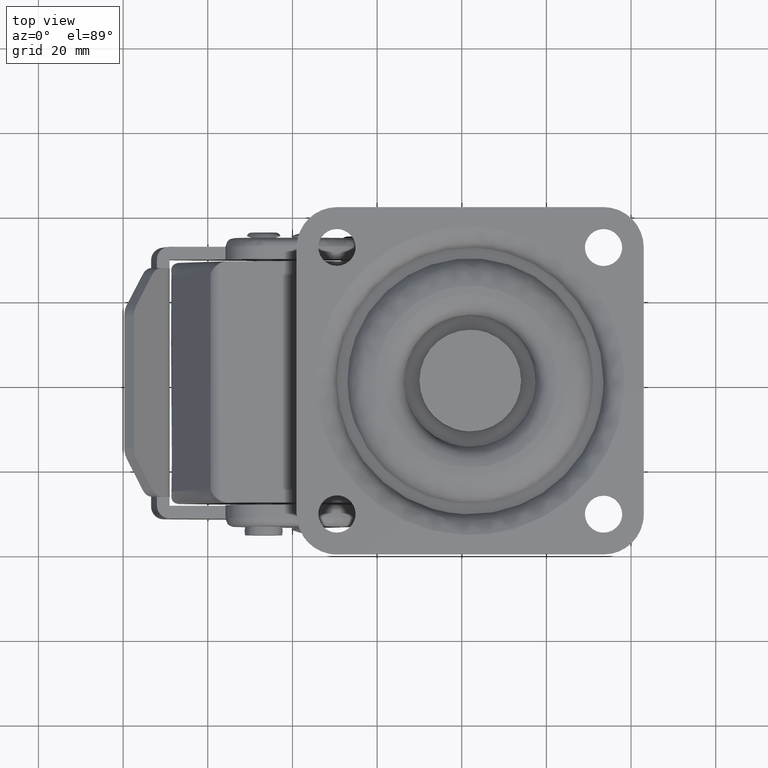
[diagram: clean part render]
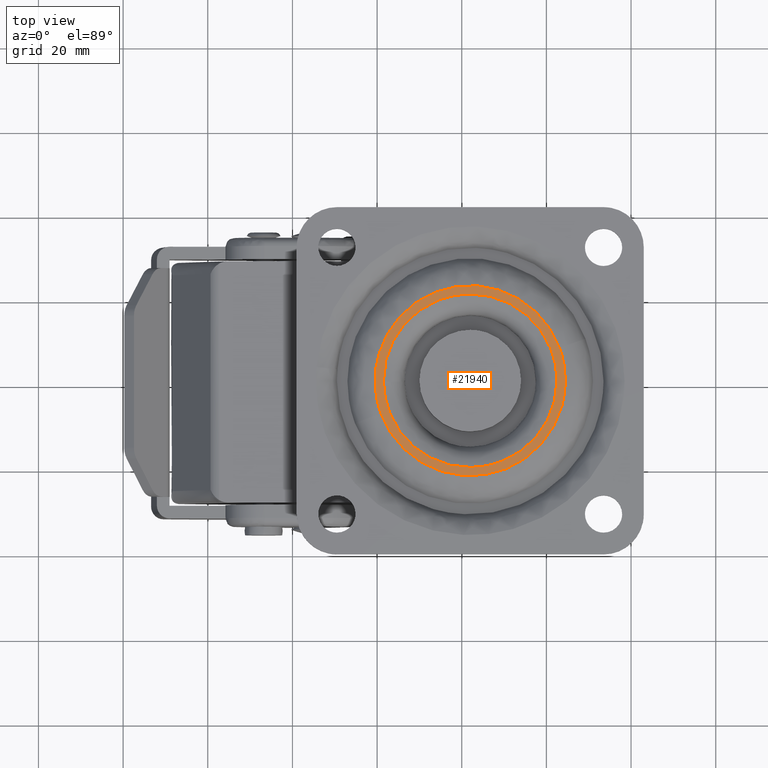
[diagram: same view with one face highlighted and labeled with its STEP entity id]
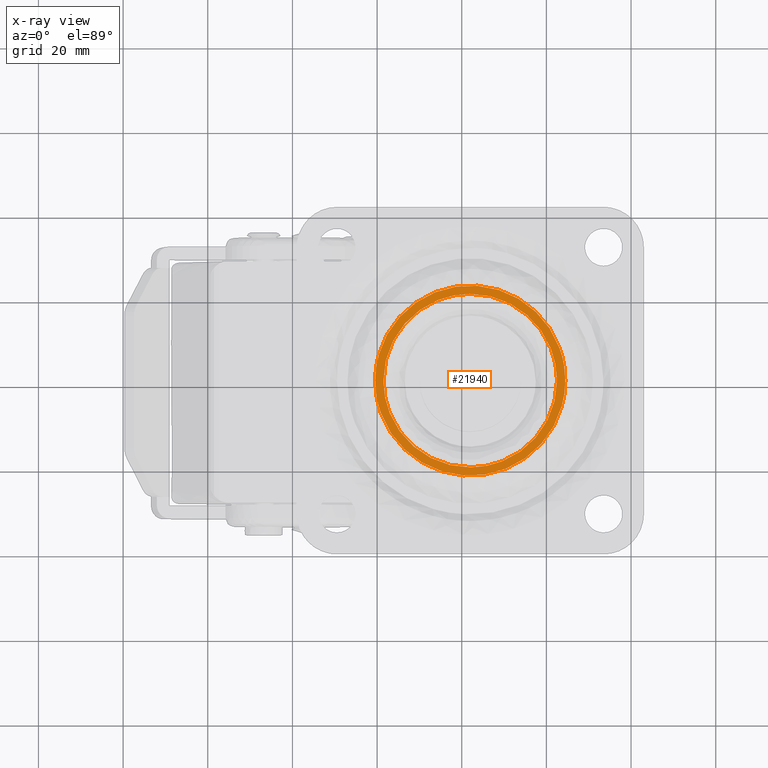
[diagram: x-ray of the same camera — body ghosted, the highlighted face saturated]
A machine part, top view. The second image highlights one B-rep face of the part: STEP entity #21940.
The next image is the same camera in x-ray: the body ghosted, the highlighted face saturated — about 0% of this face is hidden behind the body in this view.
In plain terms, the highlighted face is a freeform B-spline surface patch.
Its self-contained STEP definition (entity closure, byte-faithful):
#21771=CARTESIAN_POINT('',(-2.705570490929102,24.704286370710481,57.500000000000000));
#21772=CARTESIAN_POINT('',(46.705571695866489,24.704286370710481,57.500000000000000));
#21773=CARTESIAN_POINT('',(-2.705570490929102,-24.704375476838461,57.500000000000000));
#21774=CARTESIAN_POINT('',(46.705571695866489,-24.704375476838461,57.500000000000000));
#21775=B_SPLINE_SURFACE_WITH_KNOTS('',1,1,((#21771,#21773),(#21772,#21774)),.UNSPECIFIED.,.F.,.F.,.U.,(2,2),(2,2),(0.0,49.411142186795587),(0.0,49.408661847548942),.UNSPECIFIED.);
#21776=CARTESIAN_POINT('',(-0.461651584688748,2.842171E-014,57.500000000000000));
#21777=VERTEX_POINT('',#21776);
#21778=CARTESIAN_POINT('',(0.914487154822450,-7.741249263426779,57.500000000000000));
#21779=VERTEX_POINT('',#21778);
#21780=CARTESIAN_POINT('',(-0.461651584688748,2.842171E-014,57.500000000000000));
#21781=CARTESIAN_POINT('',(-0.461743271176180,-1.234900042100232,57.500000000000007));
#21782=CARTESIAN_POINT('',(-0.243833214106595,-3.869307365513851,57.500000000000007));
#21783=CARTESIAN_POINT('',(0.431996101282534,-6.427491636688772,57.499999999999943));
#21784=CARTESIAN_POINT('',(0.914487154822450,-7.741249263426779,57.500000000000000));
#21785=B_SPLINE_CURVE_WITH_KNOTS('',3,(#21780,#21781,#21782,#21783,#21784),.UNSPECIFIED.,.F.,.U.,(4,1,4),(4.131778E-009,3.704688696898565,7.903330230475531),.UNSPECIFIED.);
#21786=EDGE_CURVE('',#21777,#21779,#21785,.T.);
#21787=ORIENTED_EDGE('',*,*,#21786,.T.);
#21788=CARTESIAN_POINT('',(44.461651584689250,2.842171E-014,57.500000000000000));
#21789=VERTEX_POINT('',#21788);
#21790=CARTESIAN_POINT('',(0.914487154822450,-7.741249263426779,57.500000000000000));
#21791=CARTESIAN_POINT('',(1.308124771095212,-8.813555722081786,57.500000000000007));
#21792=CARTESIAN_POINT('',(2.395254357793445,-11.195751705284019,57.500000000000007));
#21793=CARTESIAN_POINT('',(4.648499287688146,-14.471921507706700,57.500000000000043));
#21794=CARTESIAN_POINT('',(7.297649923616174,-17.094096634919730,57.500000000000263));
#21795=CARTESIAN_POINT('',(9.740601368119439,-18.876929427810779,57.499999999999453));
#21796=CARTESIAN_POINT('',(12.046500990661221,-20.193498536153928,57.500000000003311));
#21797=CARTESIAN_POINT('',(14.454793902409630,-21.216351848537869,57.499999999992639));
#21798=CARTESIAN_POINT('',(17.440229385953050,-22.071768951137010,57.500000000006338));
#21799=CARTESIAN_POINT('',(20.400778570590901,-22.481039748404790,57.500000000004754));
#21800=CARTESIAN_POINT('',(23.874073108426721,-22.466116850960979,57.499999999997428));
#21801=CARTESIAN_POINT('',(27.032394918218671,-21.984261732318579,57.499999999999289));
#21802=CARTESIAN_POINT('',(30.384234701457899,-20.922689822981361,57.500000000007319));
#21803=CARTESIAN_POINT('',(33.035958953230697,-19.638211825970622,57.499999999995957));
#21804=CARTESIAN_POINT('',(35.902822801398237,-17.752423026238372,57.500000000003887));
#21805=CARTESIAN_POINT('',(38.312258488848123,-15.588771844805599,57.499999999999467));
#21806=CARTESIAN_POINT('',(40.766855784303743,-12.526200174051620,57.500000000003247));
#21807=CARTESIAN_POINT('',(42.454372899910616,-9.524733810196992,57.499999999997947));
#21808=CARTESIAN_POINT('',(43.529830285570817,-6.566129223344161,57.500000000000369));
#21809=CARTESIAN_POINT('',(44.258646640188232,-3.549128333975628,57.499999999999957));
#21810=CARTESIAN_POINT('',(44.461839544124217,-1.427856455022432,57.500000000000092));
#21811=CARTESIAN_POINT('',(44.461651584689250,2.842171E-014,57.500000000000000));
#21812=B_SPLINE_CURVE_WITH_KNOTS('',3,(#21790,#21791,#21792,#21793,#21794,#21795,#21796,#21797,#21798,#21799,#21800,#21801,#21802,#21803,#21804,#21805,#21806,#21807,#21808,#21809,#21810,#21811),.UNSPECIFIED.,.F.,.U.,(4,1,1,1,1,1,1,1,1,1,1,1,1,1,1,1,1,1,1,4),(0.000000212232280,3.426832564042286,7.832749004615359,11.871510545222490,14.564048602235911,16.889402476559741,19.826713223983610,22.396830842320579,26.190841942433320,28.760996227578900,32.799684465871017,35.736919785859669,39.286190478037632,41.611544138041182,46.017492053832569,48.954793099247262,53.360751608862529,56.298056478402927,58.378597374202698,62.662116845330260),.UNSPECIFIED.);
#21813=EDGE_CURVE('',#21779,#21789,#21812,.T.);
#21814=ORIENTED_EDGE('',*,*,#21813,.T.);
#21815=CARTESIAN_POINT('',(43.085512845178037,7.741249263426834,57.500000000000000));
#21816=VERTEX_POINT('',#21815);
#21817=CARTESIAN_POINT('',(44.461651584689250,2.842171E-014,57.500000000000000));
#21818=CARTESIAN_POINT('',(44.462080835901261,1.728898784396192,57.500000000000192));
#21819=CARTESIAN_POINT('',(44.155873125132672,4.363134189274289,57.499999999999808));
#21820=CARTESIAN_POINT('',(43.397628278094857,6.891147300833556,57.500000000000348));
#21821=CARTESIAN_POINT('',(43.085512845178037,7.741249263426834,57.500000000000000));
#21822=B_SPLINE_CURVE_WITH_KNOTS('',3,(#21817,#21818,#21819,#21820,#21821),.UNSPECIFIED.,.F.,.U.,(4,1,4),(4.130349E-009,5.186556349087166,7.903330230475540),.UNSPECIFIED.);
#21823=EDGE_CURVE('',#21789,#21816,#21822,.T.);
#21824=ORIENTED_EDGE('',*,*,#21823,.T.);
#21825=CARTESIAN_POINT('',(43.085512845178037,7.741249263426834,57.500000000000000));
#21826=CARTESIAN_POINT('',(42.453218158153263,9.464764045130007,57.500000000000057));
#21827=CARTESIAN_POINT('',(40.987907328209459,12.316275388005050,57.499999999999808));
#21828=CARTESIAN_POINT('',(38.234283691844780,15.673238270519439,57.500000000000327));
#21829=CARTESIAN_POINT('',(35.213665638117952,18.310141097082539,57.500000000000000));
#21830=CARTESIAN_POINT('',(31.979265663698509,20.251444853216739,57.499999999999673));
#21831=CARTESIAN_POINT('',(28.198042088375740,21.701598943197510,57.500000000000853));
#21832=CARTESIAN_POINT('',(24.420529672712700,22.456767759939879,57.499999999997662));
#21833=CARTESIAN_POINT('',(20.858228251903011,22.509321785202310,57.500000000004448));
#21834=CARTESIAN_POINT('',(17.940251874286279,22.136940936745901,57.499999999993832));
#21835=CARTESIAN_POINT('',(15.040309788506830,21.440112357949008,57.500000000004448));
#21836=CARTESIAN_POINT('',(12.149660872780389,20.284707270971229,57.499999999998273));
#21837=CARTESIAN_POINT('',(9.192092315858144,18.540488318592381,57.500000000000163));
#21838=CARTESIAN_POINT('',(6.469866280470345,16.376176303594850,57.500000000000057));
#21839=CARTESIAN_POINT('',(4.174505120163238,13.811869990629569,57.500000000000007));
#21840=CARTESIAN_POINT('',(2.277866014760851,10.901423257894519,57.500000000000021));
#21841=CARTESIAN_POINT('',(1.043934702431795,8.270925516454135,57.499999999999993));
#21842=CARTESIAN_POINT('',(-0.122156976527001,4.568870015120514,57.500000000000028));
#21843=CARTESIAN_POINT('',(-0.462221581686179,1.876655715639918,57.500000000000007));
#21844=CARTESIAN_POINT('',(-0.461651584688748,2.842171E-014,57.500000000000000));
#21845=B_SPLINE_CURVE_WITH_KNOTS('',3,(#21825,#21826,#21827,#21828,#21829,#21830,#21831,#21832,#21833,#21834,#21835,#21836,#21837,#21838,#21839,#21840,#21841,#21842,#21843,#21844),.UNSPECIFIED.,.F.,.U.,(4,1,1,1,1,1,1,1,1,1,1,1,1,1,1,1,1,4),(0.000000212256353,5.507401803288971,9.546142119784456,12.973009580467760,17.501348232030161,20.805793416474518,25.089353764940299,29.005743583259228,31.453360746752029,33.901167690025900,37.939913549985043,40.754811162074994,44.181677451591924,48.342846468467137,51.035385927329067,54.584590429113867,57.032356093922438,62.662116845330232),.UNSPECIFIED.);
#21846=EDGE_CURVE('',#21816,#21777,#21845,.T.);
#21847=ORIENTED_EDGE('',*,*,#21846,.T.);
#21848=EDGE_LOOP('',(#21787,#21814,#21824,#21847));
#21849=FACE_OUTER_BOUND('',#21848,.T.);
#21850=CARTESIAN_POINT('',(1.501618594754255,-0.257603817949442,57.500000000000000));
#21851=VERTEX_POINT('',#21850);
#21852=CARTESIAN_POINT('',(1.500000000000249,2.842171E-014,57.500000000000000));
#21853=VERTEX_POINT('',#21852);
#21854=CARTESIAN_POINT('',(1.501618594754255,-0.257603817949442,57.500000000000000));
#21855=CARTESIAN_POINT('',(1.501244484763512,-0.171735099095688,57.499999999999929));
#21856=CARTESIAN_POINT('',(1.499766297044813,-0.085871583128150,57.500000000000107));
#21857=CARTESIAN_POINT('',(1.500000000000249,2.842171E-014,57.500000000000000));
#21858=B_SPLINE_CURVE_WITH_KNOTS('',3,(#21854,#21855,#21856,#21857),.UNSPECIFIED.,.F.,.U.,(4,4),(0.000000050845643,0.257610449616337),.UNSPECIFIED.);
#21859=EDGE_CURVE('',#21851,#21853,#21858,.T.);
#21860=ORIENTED_EDGE('',*,*,#21859,.T.);
#21861=CARTESIAN_POINT('',(21.871288834671169,20.499595933476382,57.500000000000007));
#21862=VERTEX_POINT('',#21861);
#21863=CARTESIAN_POINT('',(1.500000000000249,2.842171E-014,57.500000000000000));
#21864=CARTESIAN_POINT('',(1.499551921341089,1.712252075128403,57.499999999999950));
#21865=CARTESIAN_POINT('',(1.863194050056622,4.593534704836276,57.500000000000242));
#21866=CARTESIAN_POINT('',(3.121358575225637,8.194282779023197,57.499999999999709));
#21867=CARTESIAN_POINT('',(4.418882779068963,10.633089659494090,57.500000000000668));
#21868=CARTESIAN_POINT('',(5.869555734673713,12.730810268191309,57.499999999999581));
#21869=CARTESIAN_POINT('',(7.866477664270933,14.988682369450419,57.500000000000533));
#21870=CARTESIAN_POINT('',(10.454216021039329,17.062054859210900,57.499999999999297));
#21871=CARTESIAN_POINT('',(13.129934496589740,18.538721212448682,57.499999999999538));
#21872=CARTESIAN_POINT('',(15.729606405100110,19.583586815903988,57.499999999999417));
#21873=CARTESIAN_POINT('',(18.573338575521390,20.302642364136219,57.500000000002238));
#21874=CARTESIAN_POINT('',(20.785515922189180,20.492850609859008,57.499999999996533));
#21875=CARTESIAN_POINT('',(21.871288834671169,20.499595933476382,57.500000000000007));
#21876=B_SPLINE_CURVE_WITH_KNOTS('',3,(#21863,#21864,#21865,#21866,#21867,#21868,#21869,#21870,#21871,#21872,#21873,#21874,#21875),.UNSPECIFIED.,.F.,.U.,(4,1,1,1,1,1,1,1,1,1,4),(0.000000085614221,5.136628443418275,8.644586441939069,11.400853761324530,13.405399285751070,16.286868912322131,20.421253593797040,23.302791667497601,25.432627752132579,28.815284319189050,32.072662599720772),.UNSPECIFIED.);
#21877=EDGE_CURVE('',#21853,#21862,#21876,.T.);
#21878=ORIENTED_EDGE('',*,*,#21877,.T.);
#21879=CARTESIAN_POINT('',(42.498381405246242,0.257603817949502,57.500000000000000));
#21880=VERTEX_POINT('',#21879);
#21881=CARTESIAN_POINT('',(21.871288834671169,20.499595933476382,57.500000000000007));
#21882=CARTESIAN_POINT('',(22.915285218740969,20.506193427720099,57.500000000000043));
#21883=CARTESIAN_POINT('',(25.213201225401740,20.344819473468689,57.499999999999723));
#21884=CARTESIAN_POINT('',(28.514183896285999,19.543440872321700,57.500000000000703));
#21885=CARTESIAN_POINT('',(31.588789809248080,18.209597617985740,57.499999999998913));
#21886=CARTESIAN_POINT('',(34.423306997312359,16.424331190896218,57.500000000001918));
#21887=CARTESIAN_POINT('',(37.149266229457808,13.999312694122070,57.499999999998501));
#21888=CARTESIAN_POINT('',(39.464425184933113,10.961318575409649,57.500000000000483));
#21889=CARTESIAN_POINT('',(41.174128347649329,7.551757265407288,57.499999999999403));
#21890=CARTESIAN_POINT('',(42.220799498512527,4.012858730993118,57.500000000002473));
#21891=CARTESIAN_POINT('',(42.482755559785872,1.510333947253014,57.499999999997939));
#21892=CARTESIAN_POINT('',(42.498381405246242,0.257603817949502,57.500000000000000));
#21893=B_SPLINE_CURVE_WITH_KNOTS('',3,(#21881,#21882,#21883,#21884,#21885,#21886,#21887,#21888,#21889,#21890,#21891,#21892),.UNSPECIFIED.,.F.,.U.,(4,1,1,1,1,1,1,1,1,4),(0.000000085576485,3.132059659158610,6.890568842829481,10.147939572855240,13.154761852652820,16.913205189962049,21.047558918445070,24.555492081663392,28.314008207893330,32.072476021965421),.UNSPECIFIED.);
#21894=EDGE_CURVE('',#21862,#21880,#21893,.T.);
#21895=ORIENTED_EDGE('',*,*,#21894,.T.);
#21896=CARTESIAN_POINT('',(42.500000000000249,2.842171E-014,57.500000000000000));
#21897=VERTEX_POINT('',#21896);
#21898=CARTESIAN_POINT('',(42.498381405246242,0.257603817949502,57.500000000000000));
#21899=CARTESIAN_POINT('',(42.498755515236986,0.171735099095748,57.499999999999979));
#21900=CARTESIAN_POINT('',(42.500233702955697,0.085871583128208,57.500000000000007));
#21901=CARTESIAN_POINT('',(42.500000000000249,2.842171E-014,57.500000000000000));
#21902=B_SPLINE_CURVE_WITH_KNOTS('',3,(#21898,#21899,#21900,#21901),.UNSPECIFIED.,.F.,.U.,(4,4),(0.000000050845643,0.257610449616340),.UNSPECIFIED.);
#21903=EDGE_CURVE('',#21880,#21897,#21902,.T.);
#21904=ORIENTED_EDGE('',*,*,#21903,.T.);
#21905=CARTESIAN_POINT('',(22.128711165329229,-20.499595933476321,57.499999999999993));
#21906=VERTEX_POINT('',#21905);
#21907=CARTESIAN_POINT('',(42.500000000000249,2.842171E-014,57.500000000000000));
#21908=CARTESIAN_POINT('',(42.500284197785248,-1.503421446619027,57.500000000000043));
#21909=CARTESIAN_POINT('',(42.204607358666927,-4.176004983574278,57.499999999999957));
#21910=CARTESIAN_POINT('',(41.057173837598818,-7.813553399389999,57.500000000000043));
#21911=CARTESIAN_POINT('',(39.700066086363400,-10.461161524032160,57.499999999999993));
#21912=CARTESIAN_POINT('',(38.130441870158378,-12.730807691281541,57.500000000000007));
#21913=CARTESIAN_POINT('',(36.133521945049857,-14.988686486776331,57.500000000000000));
#21914=CARTESIAN_POINT('',(33.644054981352006,-16.983305958413819,57.499999999999979));
#21915=CARTESIAN_POINT('',(30.983592125523920,-18.483559497900810,57.500000000000043));
#21916=CARTESIAN_POINT('',(28.469616142511359,-19.520825642609950,57.499999999999673));
#21917=CARTESIAN_POINT('',(25.510075958901179,-20.288469751178869,57.500000000001158));
#21918=CARTESIAN_POINT('',(23.298004087936100,-20.492357629206541,57.499999999998238));
#21919=CARTESIAN_POINT('',(22.128711165329229,-20.499595933476321,57.499999999999993));
#21920=B_SPLINE_CURVE_WITH_KNOTS('',3,(#21907,#21908,#21909,#21910,#21911,#21912,#21913,#21914,#21915,#21916,#21917,#21918,#21919),.UNSPECIFIED.,.F.,.U.,(4,1,1,1,1,1,1,1,1,1,4),(0.000000085644754,4.510195525660688,8.018166525384604,11.400853761346770,13.405399285772280,16.286868912341440,20.421253593811912,22.926934231100951,25.432627752141521,28.564731834950820,32.072662599720708),.UNSPECIFIED.);
#21921=EDGE_CURVE('',#21897,#21906,#21920,.T.);
#21922=ORIENTED_EDGE('',*,*,#21921,.T.);
#21923=CARTESIAN_POINT('',(22.128711165329229,-20.499595933476321,57.499999999999993));
#21924=CARTESIAN_POINT('',(20.541795524379221,-20.509937776914239,57.499999999999922));
#21925=CARTESIAN_POINT('',(18.076323785098761,-20.237407193281349,57.500000000000092));
#21926=CARTESIAN_POINT('',(14.427348387815689,-19.148044813832708,57.500000000000441));
#21927=CARTESIAN_POINT('',(11.294387868422460,-17.626775632023168,57.499999999998430));
#21928=CARTESIAN_POINT('',(8.505766733674170,-15.543698083283060,57.500000000002522));
#21929=CARTESIAN_POINT('',(6.079333410589524,-13.058494790259930,57.499999999998749));
#21930=CARTESIAN_POINT('',(4.007503482730578,-10.103852270028710,57.500000000000803));
#21931=CARTESIAN_POINT('',(2.475069299927627,-6.605107722487009,57.500000000000853));
#21932=CARTESIAN_POINT('',(1.683445360922648,-3.262326993384669,57.499999999997890));
#21933=CARTESIAN_POINT('',(1.513650792291115,-1.218021047783426,57.500000000004228));
#21934=CARTESIAN_POINT('',(1.501618594754255,-0.257603817949442,57.500000000000000));
#21935=B_SPLINE_CURVE_WITH_KNOTS('',3,(#21923,#21924,#21925,#21926,#21927,#21928,#21929,#21930,#21931,#21932,#21933,#21934),.UNSPECIFIED.,.F.,.U.,(4,1,1,1,1,1,1,1,1,4),(0.000000085617703,4.760734611762871,7.391699989810945,11.400787438306811,15.159275896573879,17.790181686621100,21.799245824024911,25.933606359302651,29.190995325079012,32.072476021965137),.UNSPECIFIED.);
#21936=EDGE_CURVE('',#21906,#21851,#21935,.T.);
#21937=ORIENTED_EDGE('',*,*,#21936,.T.);
#21938=EDGE_LOOP('',(#21860,#21878,#21895,#21904,#21922,#21937));
#21939=FACE_BOUND('',#21938,.T.);
#21940=ADVANCED_FACE('',(#21849,#21939),#21775,.F.);